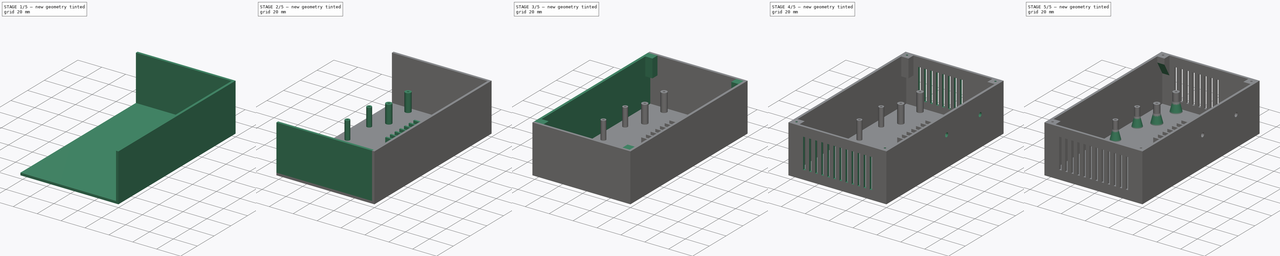
[diagram: build sequence overview — one tinted view per stage of 5, left to right]
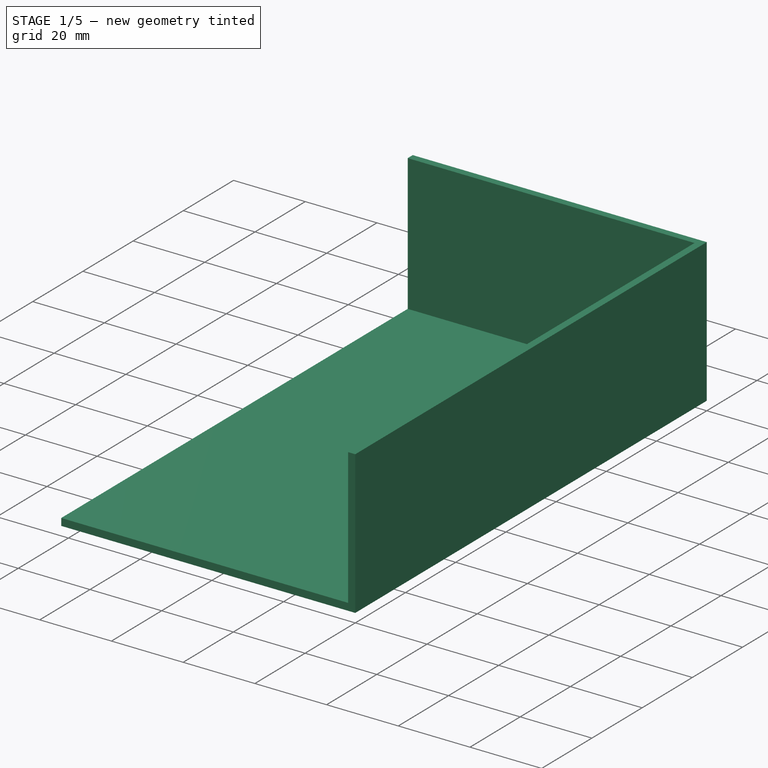
[diagram: stage 1 of 5 — iso view after this stage's code; geometry added in this stage tinted green]
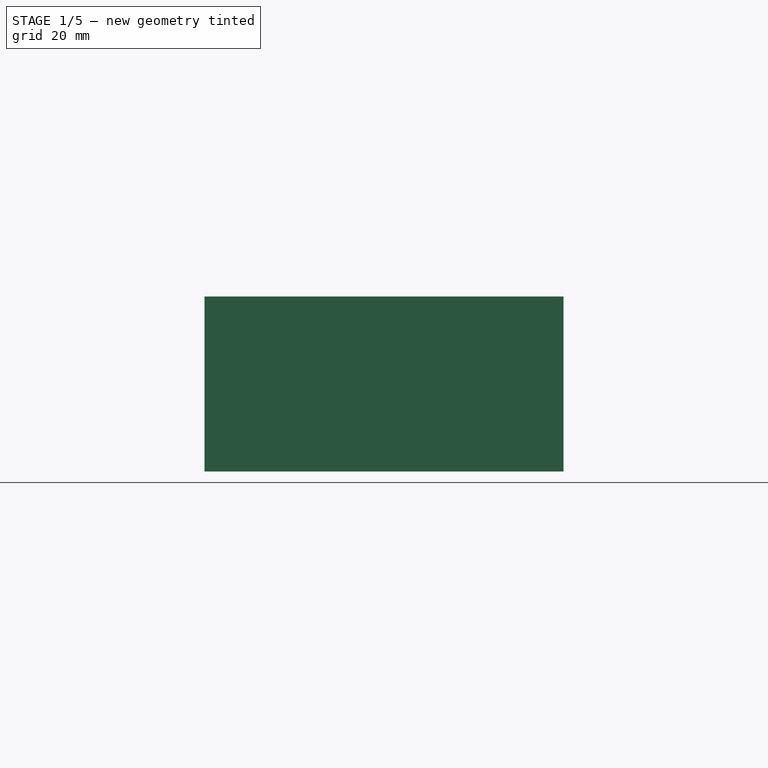
[diagram: stage 1 of 5 — front view after this stage's code; geometry added in this stage tinted green]
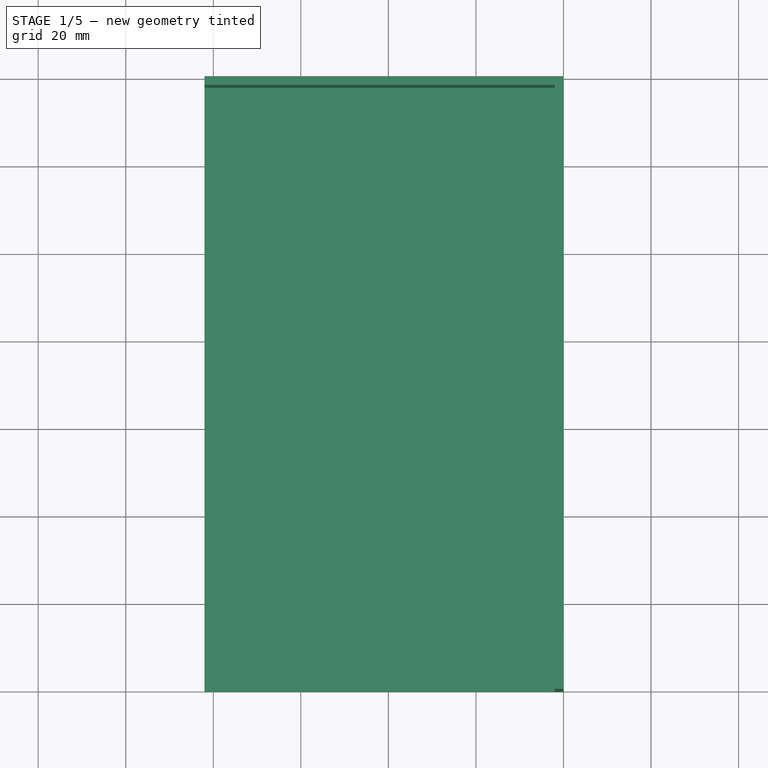
[diagram: stage 1 of 5 — top view after this stage's code; geometry added in this stage tinted green]
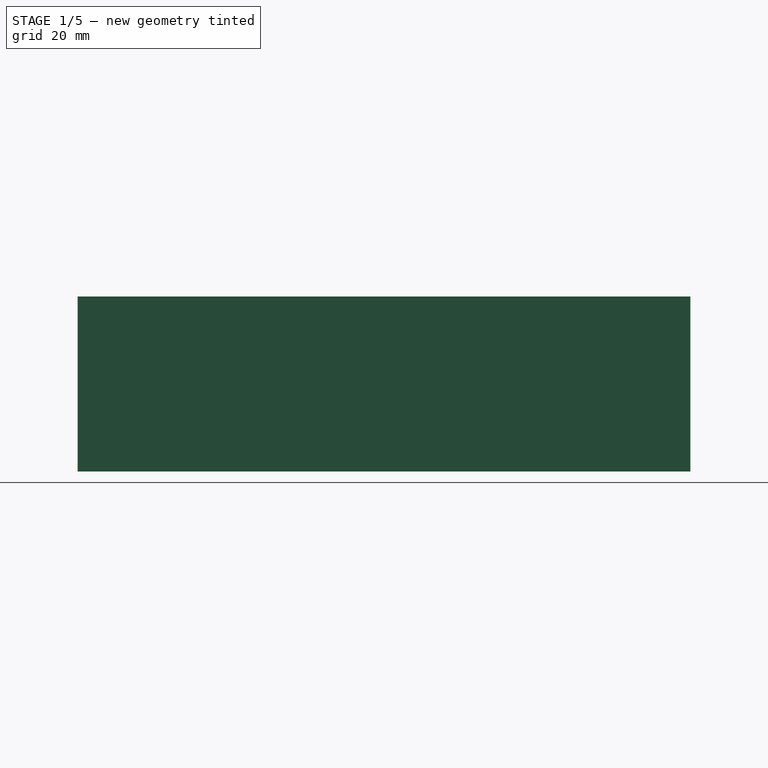
[diagram: stage 1 of 5 — right view after this stage's code; geometry added in this stage tinted green]
FCSTD DOCUMENT  (FreeCAD 0.19R24366 (Git))
Label: case
License: All rights reserved
LicenseURL: http://en.wikipedia.org/wiki/All_rights_reserved
objects: Sketcher::SketchObject×14, PartDesign::Pad×8, PartDesign::Pocket×6, PartDesign::Chamfer×3, PartDesign::Body×1
note: 49 computed .brp shape members not serialized (recipe doc carries the construction recipe); baked Part::Feature solids carry a one-line shape summary decoded from their .brp

FEATURE [Sketcher::SketchObject] Sketch
  FullyConstrained = true
  MapMode = 2
  Placement = pos=(0,0,0) rot=(0.57735,-0.57735,-0.57735;2.0944rad)
  sketch-geometry (4):
    g0: LineSegment StartX=0 StartY=0 StartZ=0 EndX=140 EndY=0 EndZ=0
    g1: LineSegment StartX=140 StartY=0 StartZ=0 EndX=140 EndY=40 EndZ=0
    g2: LineSegment StartX=140 StartY=40 StartZ=0 EndX=0 EndY=40 EndZ=0
    g3: LineSegment StartX=0 StartY=40 StartZ=0 EndX=0 EndY=0 EndZ=0
  constraints (11):
    c: Coincident(g0,g1)
    c: Coincident(g1,g2)
    c: Coincident(g2,g3)
    c: Coincident(g3,g0)
    c: Horizontal(g0)
    c: Horizontal(g2)
    c: Vertical(g1)
    c: Vertical(g3)
    c: Coincident(g0,g-1)
    c: DistanceY(g3,g3) = 40
    c: DistanceX(g2,g2) = 140
FEATURE [PartDesign::Pad] Pad  label="BottomPlate"
  Direction = (1,1,1)
  Length = 2
  Length2 = 100
  Placement = pos=(0,0,0) rot=(0.57735,-0.57735,-0.57735;2.0944rad)
  Profile = -> Sketch
  Type = 0
FEATURE [Sketcher::SketchObject] Sketch001
  ExternalGeometry = -> [Pad]
  FullyConstrained = true
  MapMode = 5
  Placement = pos=(-2,0,0) rot=(0.57735,-0.57735,-0.57735;2.0944rad)
  Support = -> [Pad]
  sketch-geometry (4):
    g0: LineSegment StartX=0 StartY=40 StartZ=0 EndX=2 EndY=40 EndZ=0
    g1: LineSegment StartX=2 StartY=40 StartZ=0 EndX=2 EndY=0 EndZ=0
    g2: LineSegment StartX=2 StartY=0 StartZ=0 EndX=0 EndY=0 EndZ=0
    g3: LineSegment StartX=0 StartY=0 StartZ=0 EndX=0 EndY=40 EndZ=0
  constraints (11):
    c: Coincident(g0,g1)
    c: Coincident(g1,g2)
    c: Coincident(g2,g3)
    c: Coincident(g3,g0)
    c: Horizontal(g0)
    c: Horizontal(g2)
    c: Vertical(g1)
    c: Vertical(g3)
    c: Coincident(g0,g-3)
    c: PointOnObject(g1,g-1)
    c: DistanceX(g0,g0) = 2
FEATURE [PartDesign::Pad] Pad001
  BaseFeature = -> Pad
  Direction = (1,1,1)
  Length = 80
  Length2 = 100
  Placement = pos=(0,0,0) rot=(0.57735,-0.57735,-0.57735;2.0944rad)
  Profile = -> Sketch001
  Type = 0
FEATURE [Sketcher::SketchObject] Sketch002
  ExternalGeometry = -> [Pad001]
  FullyConstrained = true
  MapMode = 5
  Placement = pos=(-2,0,0) rot=(0.57735,-0.57735,-0.57735;2.0944rad)
  Support = -> [Pad001]
  sketch-geometry (4):
    g0: LineSegment StartX=2 StartY=0 StartZ=0 EndX=140 EndY=0 EndZ=0
    g1: LineSegment StartX=140 StartY=0 StartZ=0 EndX=140 EndY=2 EndZ=0
    g2: LineSegment StartX=140 StartY=2 StartZ=0 EndX=2 EndY=2 EndZ=0
    g3: LineSegment StartX=2 StartY=2 StartZ=0 EndX=2 EndY=0 EndZ=0
  constraints (11):
    c: Coincident(g0,g1)
    c: Coincident(g1,g2)
    c: Coincident(g2,g3)
    c: Coincident(g3,g0)
    c: Horizontal(g0)
    c: Horizontal(g2)
    c: Vertical(g1)
    c: Vertical(g3)
    c: Coincident(g0,g-3)
    c: PointOnObject(g1,g-4)
    c: DistanceY(g1,g1) = 2
FEATURE [PartDesign::Pad] Pad002
  BaseFeature = -> Pad001
  Direction = (1,1,1)
  Length = 10
  Length2 = 100
  Placement = pos=(0,0,0) rot=(0.57735,-0.57735,-0.57735;2.0944rad)
  Profile = -> Sketch002
  Type = 3
  UpToFace = -> Pad001 [Face10]
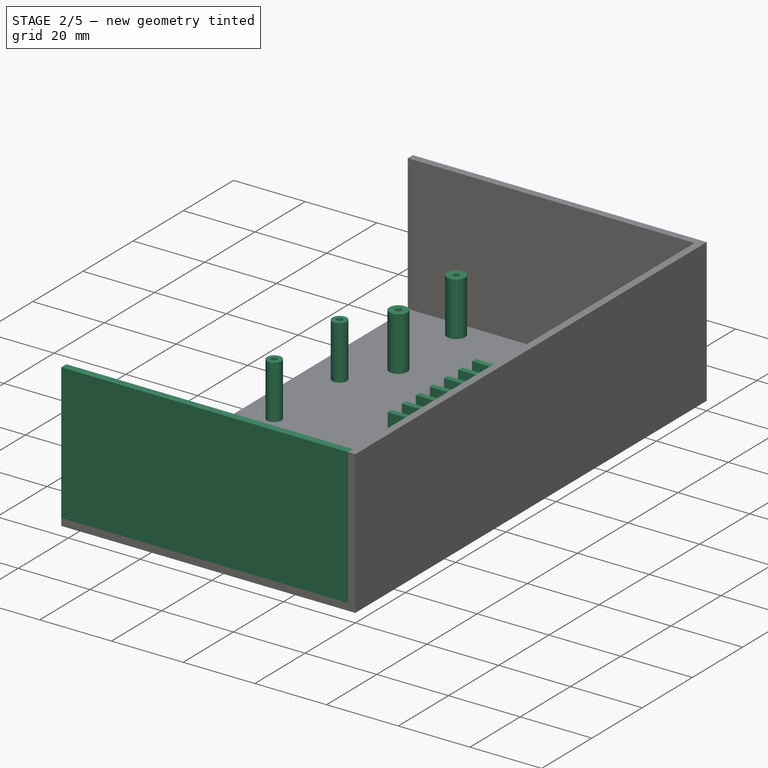
[diagram: stage 2 of 5 — iso view after this stage's code; geometry added in this stage tinted green]
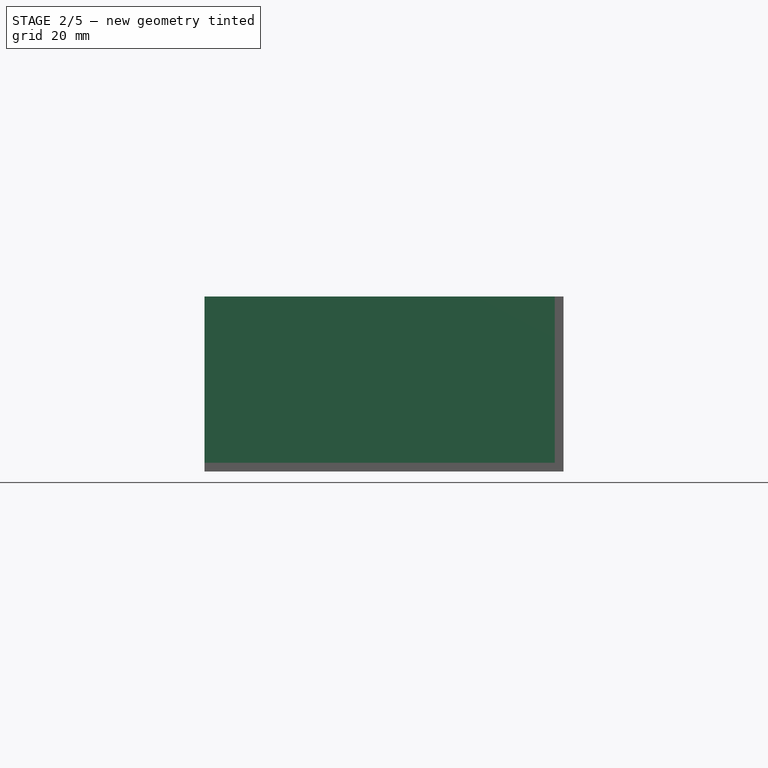
[diagram: stage 2 of 5 — front view after this stage's code; geometry added in this stage tinted green]
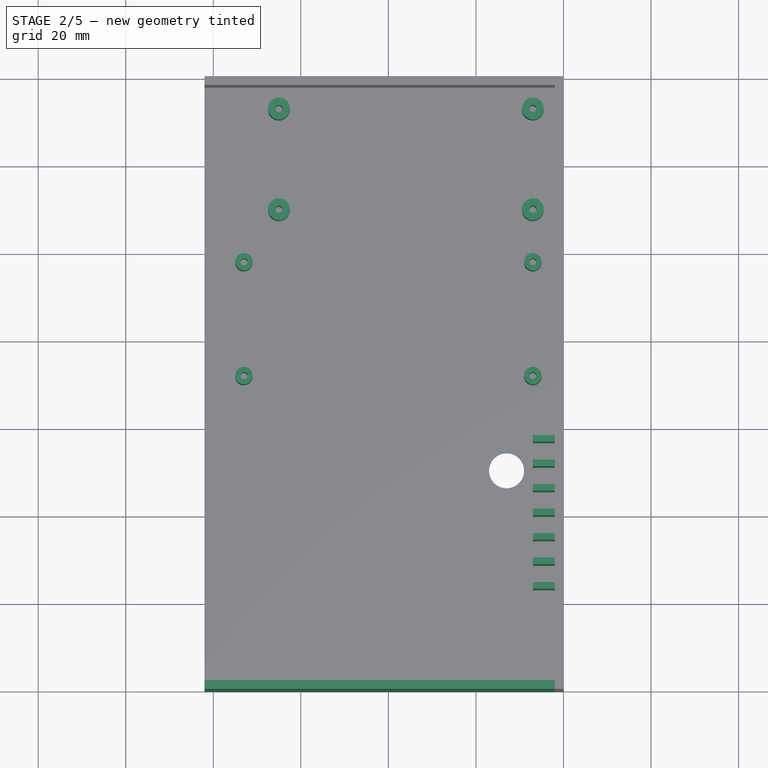
[diagram: stage 2 of 5 — top view after this stage's code; geometry added in this stage tinted green]
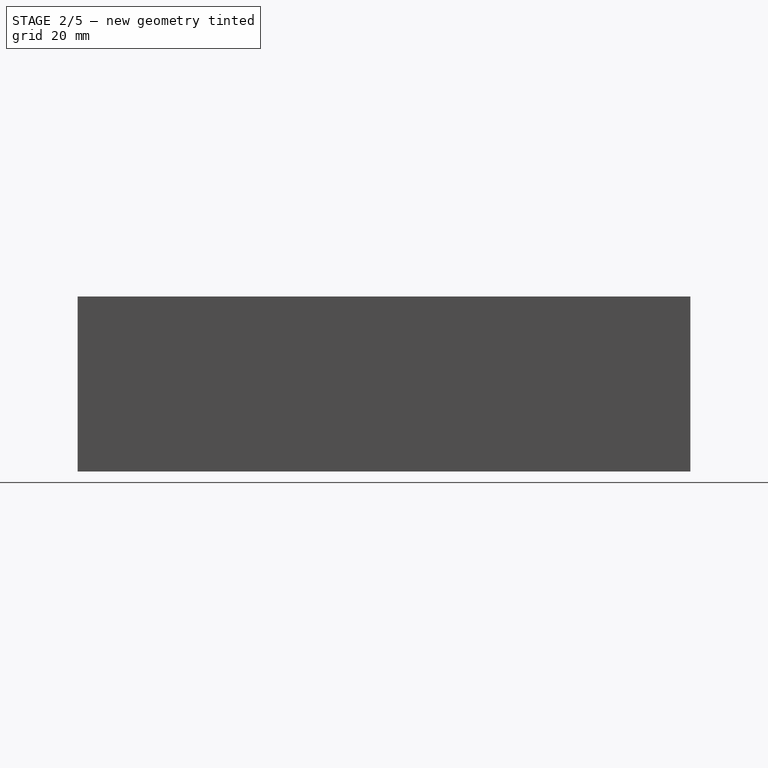
[diagram: stage 2 of 5 — right view after this stage's code; geometry added in this stage tinted green]
FEATURE [Sketcher::SketchObject] Sketch003
  ExternalGeometry = -> [Pad002]
  FullyConstrained = true
  MapMode = 5
  Placement = pos=(4e-16,-2e-16,2) rot=(0,0,1;1.5708rad)
  Support = -> [Pad002]
  sketch-geometry (16):
    g0: Circle CenterX=-7 CenterY=7 CenterZ=0 NormalX=0 NormalY=0 NormalZ=1 AngleXU=0 Radius=2.5
    g1: Circle CenterX=-30 CenterY=7 CenterZ=0 NormalX=0 NormalY=0 NormalZ=1 AngleXU=0 Radius=2.5
    g2: Circle CenterX=-7 CenterY=65 CenterZ=0 NormalX=0 NormalY=0 NormalZ=1 AngleXU=0 Radius=2.5
    g3: Circle CenterX=-30 CenterY=65 CenterZ=0 NormalX=0 NormalY=0 NormalZ=1 AngleXU=0 Radius=2.5
    g4: Circle CenterX=-30 CenterY=65 CenterZ=0 NormalX=0 NormalY=0 NormalZ=1 AngleXU=0 Radius=0.8
    g5: Circle CenterX=-7 CenterY=65 CenterZ=0 NormalX=0 NormalY=0 NormalZ=1 AngleXU=0 Radius=0.8
    g6: Circle CenterX=-30 CenterY=7 CenterZ=0 NormalX=0 NormalY=0 NormalZ=1 AngleXU=0 Radius=0.8
    g7: Circle CenterX=-7 CenterY=7 CenterZ=0 NormalX=0 NormalY=0 NormalZ=1 AngleXU=0 Radius=0.8
    g8: Circle CenterX=-42 CenterY=73 CenterZ=0 NormalX=0 NormalY=0 NormalZ=1 AngleXU=0 Radius=0.8
    g9: Circle CenterX=-42 CenterY=73 CenterZ=0 NormalX=0 NormalY=0 NormalZ=1 AngleXU=0 Radius=2
    g10: Circle CenterX=-68 CenterY=73 CenterZ=0 NormalX=0 NormalY=0 NormalZ=1 AngleXU=0 Radius=0.8
    g11: Circle CenterX=-68 CenterY=73 CenterZ=0 NormalX=0 NormalY=0 NormalZ=1 AngleXU=0 Radius=2
    g12: Circle CenterX=-42 CenterY=7 CenterZ=0 NormalX=0 NormalY=0 NormalZ=1 AngleXU=0 Radius=0.8
    g13: Circle CenterX=-42 CenterY=7 CenterZ=0 NormalX=0 NormalY=0 NormalZ=1 AngleXU=0 Radius=2
    g14: Circle CenterX=-68 CenterY=7 CenterZ=0 NormalX=0 NormalY=0 NormalZ=1 AngleXU=0 Radius=0.8
    g15: Circle CenterX=-68 CenterY=7 CenterZ=0 NormalX=0 NormalY=0 NormalZ=1 AngleXU=0 Radius=2
  constraints (40):
    c: DistanceX(g2,g0) = 0
    c: DistanceY(g0,g2) = 58
    c: DistanceX(g3,g2) = 23
    c: DistanceY(g2,g3) = 0
    c: DistanceY(g1,g0) = 0
    c: DistanceX(g1,g3) = 0
    c: DistanceX(g0,g-3) = 5
    c: DistanceY(g-3,g0) = 5
    c: Coincident(g4,g3)
    c: Coincident(g5,g2)
    c: Coincident(g6,g1)
    c: Coincident(g7,g0)
    c: Coincident(g9,g8)
    c: Coincident(g11,g10)
    c: Coincident(g13,g12)
    c: Coincident(g15,g14)
    c: DistanceY(g12,g14) = 0
    c: DistanceY(g10,g8) = 0
    c: DistanceX(g8,g12) = 0
    c: DistanceX(g14,g10) = 0
    c: DistanceY(g12,g8) = 66
    c: DistanceX(g10,g8) = 26
    c: Equal(g0,g1)
    c: Equal(g0,g3)
    c: Equal(g0,g2)
    c: Diameter(g0) = 5
    c: Equal(g4,g5)
    c: Equal(g4,g7)
    c: Equal(g4,g12)
    c: Equal(g4,g14)
    c: Equal(g4,g10)
    c: Equal(g4,g8)
    c: Equal(g4,g6)
    c: Diameter(g4) = 1.6
    c: Equal(g9,g11)
    c: Equal(g9,g15)
    c: Equal(g9,g13)
    c: Diameter(g9) = 4
    c: DistanceX(g12,g-3) = 40
    c: DistanceY(g12,g1) = 0
FEATURE [PartDesign::Pad] Pad003
  BaseFeature = -> Pad002
  Direction = (1,1,1)
  Length = 15
  Length2 = 100
  Placement = pos=(0,0,0) rot=(0.57735,-0.57735,-0.57735;2.0944rad)
  Profile = -> Sketch003
  Type = 0
FEATURE [Sketcher::SketchObject] Sketch004
  ExternalGeometry = -> [Pad003]
  FullyConstrained = true
  MapMode = 5
  Placement = pos=(-2,0,0) rot=(0.57735,-0.57735,-0.57735;2.0944rad)
  Support = -> [Pad003]
  sketch-geometry (34):
    g0: LineSegment StartX=82 StartY=17 StartZ=0 EndX=83.5 EndY=17 EndZ=0
    g1: LineSegment StartX=83.5 StartY=17 StartZ=0 EndX=83.5 EndY=40 EndZ=0
    g2: LineSegment StartX=83.5 StartY=40 StartZ=0 EndX=82 EndY=40 EndZ=0
    g3: LineSegment StartX=82 StartY=40 StartZ=0 EndX=82 EndY=17 EndZ=0
    g4: LineSegment StartX=87.6 StartY=17 StartZ=0 EndX=89.1 EndY=17 EndZ=0
    g5: LineSegment StartX=89.1 StartY=17 StartZ=0 EndX=89.1 EndY=40 EndZ=0
    g6: LineSegment StartX=89.1 StartY=40 StartZ=0 EndX=87.6 EndY=40 EndZ=0
    g7: LineSegment StartX=87.6 StartY=40 StartZ=0 EndX=87.6 EndY=17 EndZ=0
    g8: LineSegment StartX=82 StartY=17 StartZ=0 EndX=87.6 EndY=17 EndZ=0
    g9: LineSegment StartX=93.2 StartY=17 StartZ=0 EndX=94.7 EndY=17 EndZ=0
    g10: LineSegment StartX=94.7 StartY=17 StartZ=0 EndX=94.7 EndY=40 EndZ=0
    g11: LineSegment StartX=94.7 StartY=40 StartZ=0 EndX=93.2 EndY=40 EndZ=0
    g12: LineSegment StartX=93.2 StartY=40 StartZ=0 EndX=93.2 EndY=17 EndZ=0
    g13: LineSegment StartX=87.6 StartY=17 StartZ=0 EndX=93.2 EndY=17 EndZ=0
    g14: LineSegment StartX=98.8 StartY=17 StartZ=0 EndX=100.3 EndY=17 EndZ=0
    g15: LineSegment StartX=100.3 StartY=17 StartZ=0 EndX=100.3 EndY=40 EndZ=0
    g16: LineSegment StartX=100.3 StartY=40 StartZ=0 EndX=98.8 EndY=40 EndZ=0
    g17: LineSegment StartX=98.8 StartY=40 StartZ=0 EndX=98.8 EndY=17 EndZ=0
    g18: LineSegment StartX=93.2 StartY=17 StartZ=0 EndX=98.8 EndY=17 EndZ=0
    g19: LineSegment StartX=104.4 StartY=17 StartZ=0 EndX=105.9 EndY=17 EndZ=0
    g20: LineSegment StartX=105.9 StartY=17 StartZ=0 EndX=105.9 EndY=40 EndZ=0
    g21: LineSegment StartX=105.9 StartY=40 StartZ=0 EndX=104.4 EndY=40 EndZ=0
    g22: LineSegment StartX=104.4 StartY=40 StartZ=0 EndX=104.4 EndY=17 EndZ=0
    g23: LineSegment StartX=98.8 StartY=17 StartZ=0 EndX=104.4 EndY=17 EndZ=0
    g24: LineSegment StartX=110 StartY=17 StartZ=0 EndX=111.5 EndY=17 EndZ=0
    g25: LineSegment StartX=111.5 StartY=17 StartZ=0 EndX=111.5 EndY=40 EndZ=0
    g26: LineSegment StartX=111.5 StartY=40 StartZ=0 EndX=110 EndY=40 EndZ=0
    g27: LineSegment StartX=110 StartY=40 StartZ=0 EndX=110 EndY=17 EndZ=0
    g28: LineSegment StartX=104.4 StartY=17 StartZ=0 EndX=110 EndY=17 EndZ=0
    g29: LineSegment StartX=115.6 StartY=17 StartZ=0 EndX=117.1 EndY=17 EndZ=0
    g30: LineSegment StartX=117.1 StartY=17 StartZ=0 EndX=117.1 EndY=40 EndZ=0
    g31: LineSegment StartX=117.1 StartY=40 StartZ=0 EndX=115.6 EndY=40 EndZ=0
    g32: LineSegment StartX=115.6 StartY=40 StartZ=0 EndX=115.6 EndY=17 EndZ=0
    g33: LineSegment StartX=110 StartY=17 StartZ=0 EndX=115.6 EndY=17 EndZ=0
  constraints (96):
    c: Coincident(g0,g1)
    c: Coincident(g1,g2)
    c: Coincident(g2,g3)
    c: Coincident(g3,g0)
    c: Horizontal(g0)
    c: Horizontal(g2)
    c: Vertical(g1)
    c: Vertical(g3)
    c: DistanceX(g2,g2) = 1.5
    c: PointOnObject(g1,g-5)
    c: DistanceY(g-4,g0) = 15
    c: Coincident(g4,g5)
    c: Coincident(g5,g6)
    c: Coincident(g6,g7)
    c: Coincident(g7,g4)
    c: Horizontal(g4)
    c: Horizontal(g6)
    c: Vertical(g5)
    c: Vertical(g7)
    c: DistanceX(g6,g6) = 1.5
    c: Coincident(g0,g8)
    c: Coincident(g4,g8)
    c: Distance(g8) = 5.6
    c: Coincident(g9,g10)
    c: Coincident(g10,g11)
    c: Coincident(g11,g12)
    c: Coincident(g12,g9)
    c: Horizontal(g9)
    c: Horizontal(g11)
    c: Vertical(g10)
    c: Vertical(g12)
    c: DistanceX(g11,g11) = 1.5
    c: Coincident(g4,g13)
    c: Coincident(g9,g13)
    c: Equal(g8,g13)
    c: Parallel(g13,g8)
    c: Coincident(g14,g15)
    c: Coincident(g15,g16)
    c: Coincident(g16,g17)
    c: Coincident(g17,g14)
    c: Horizontal(g14)
    c: Horizontal(g16)
    c: Vertical(g15)
    c: Vertical(g17)
    c: DistanceX(g16,g16) = 1.5
    c: Coincident(g9,g18)
    c: Coincident(g14,g18)
    c: Equal(g8,g18)
    c: Parallel(g18,g8)
    c: Coincident(g19,g20)
    c: Coincident(g20,g21)
    c: Coincident(g21,g22)
    c: Coincident(g22,g19)
    c: Horizontal(g19)
    c: Horizontal(g21)
    c: Vertical(g20)
    c: Vertical(g22)
    c: DistanceX(g21,g21) = 1.5
    c: Coincident(g14,g23)
    c: Coincident(g19,g23)
    c: Equal(g8,g23)
    c: Parallel(g23,g8)
    c: Coincident(g24,g25)
    c: Coincident(g25,g26)
    c: Coincident(g26,g27)
    c: Coincident(g27,g24)
    c: Horizontal(g24)
    c: Horizontal(g26)
    c: Vertical(g25)
    c: Vertical(g27)
    c: DistanceX(g26,g26) = 1.5
    c: Coincident(g19,g28)
    c: Coincident(g24,g28)
    c: Equal(g8,g28)
    c: Parallel(g28,g8)
    c: Coincident(g29,g30)
    c: Coincident(g30,g31)
    c: Coincident(g31,g32)
    c: Coincident(g32,g29)
    c: Horizontal(g29)
    c: Horizontal(g31)
    c: Vertical(g30)
    c: Vertical(g32)
    c: DistanceX(g31,g31) = 1.5
    c: Coincident(g24,g33)
    c: Coincident(g29,g33)
    c: Equal(g8,g33)
    c: Parallel(g33,g8)
    c: PointOnObject(g7,g-5)
    c: DistanceY(g0,g4) = 0
    c: PointOnObject(g10,g-5)
    c: PointOnObject(g15,g-5)
    c: PointOnObject(g20,g-5)
    c: PointOnObject(g25,g-5)
    c: PointOnObject(g30,g-5)
    c: DistanceX(g-4,g0) = 80
FEATURE [PartDesign::Pad] Pad004
  BaseFeature = -> Pad003
  Direction = (1,1,1)
  Length = 5
  Length2 = 100
  Placement = pos=(0,0,0) rot=(0.57735,-0.57735,-0.57735;2.0944rad)
  Profile = -> Sketch004
  Type = 0
FEATURE [Sketcher::SketchObject] Sketch005
  ExternalGeometry = -> [Pad004]
  FullyConstrained = true
  MapMode = 5
  Placement = pos=(4e-16,-2e-16,2) rot=(0,0,1;1.5708rad)
  Support = -> [Pad004]
  sketch-geometry (1):
    g0: Circle CenterX=-89.5 CenterY=13 CenterZ=0 NormalX=0 NormalY=0 NormalZ=1 AngleXU=0 Radius=4
  constraints (3):
    c: DistanceX(g0,g-3) = 7.5
    c: DistanceY(g-3,g0) = 11
    c: Diameter(g0) = 8
FEATURE [PartDesign::Pocket] Pocket
  BaseFeature = -> Pad004
  Length = 0
  Length2 = 100
  Placement = pos=(0,0,0) rot=(0.57735,-0.57735,-0.57735;2.0944rad)
  Profile = -> Sketch005
  Type = 3
  UpToFace = -> Pad004 [Face6]
FEATURE [Sketcher::SketchObject] Sketch006
  ExternalGeometry = -> [Pocket]
  FullyConstrained = true
  MapMode = 5
  Placement = pos=(-2,0,0) rot=(0.57735,-0.57735,-0.57735;2.0944rad)
  Support = -> [Pocket]
  sketch-geometry (4):
    g0: LineSegment StartX=140 StartY=40 StartZ=0 EndX=138 EndY=40 EndZ=0
    g1: LineSegment StartX=138 StartY=40 StartZ=0 EndX=138 EndY=2 EndZ=0
    g2: LineSegment StartX=138 StartY=2 StartZ=0 EndX=140 EndY=2 EndZ=0
    g3: LineSegment StartX=140 StartY=2 StartZ=0 EndX=140 EndY=40 EndZ=0
  constraints (11):
    c: Coincident(g0,g1)
    c: Coincident(g1,g2)
    c: Coincident(g2,g3)
    c: Coincident(g3,g0)
    c: Horizontal(g0)
    c: Horizontal(g2)
    c: Vertical(g1)
    c: Vertical(g3)
    c: Coincident(g0,g-3)
    c: PointOnObject(g-3,g2)
    c: DistanceX(g0,g0) = 2
FEATURE [PartDesign::Pad] Pad005
  BaseFeature = -> Pocket
  Direction = (1,1,1)
  Length = 10
  Length2 = 100
  Placement = pos=(0,0,0) rot=(0.57735,-0.57735,-0.57735;2.0944rad)
  Profile = -> Sketch006
  Type = 3
  UpToFace = -> Pocket [Face12]
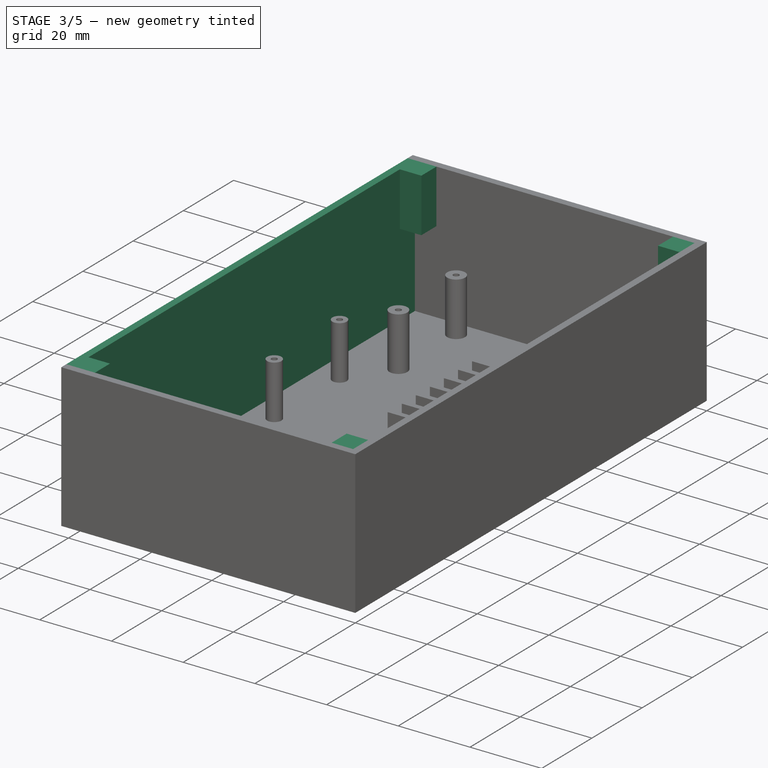
[diagram: stage 3 of 5 — iso view after this stage's code; geometry added in this stage tinted green]
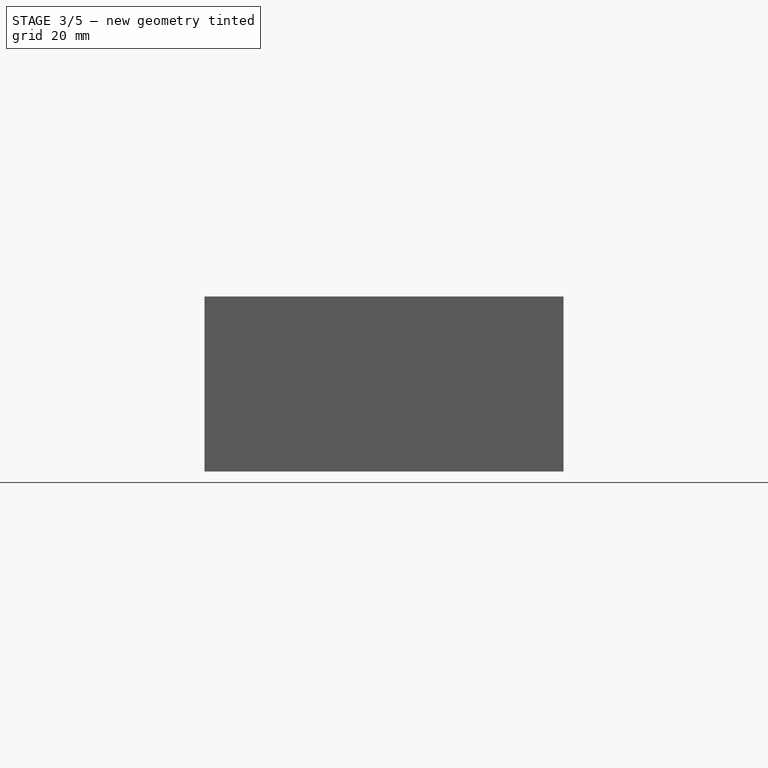
[diagram: stage 3 of 5 — front view after this stage's code; geometry added in this stage tinted green]
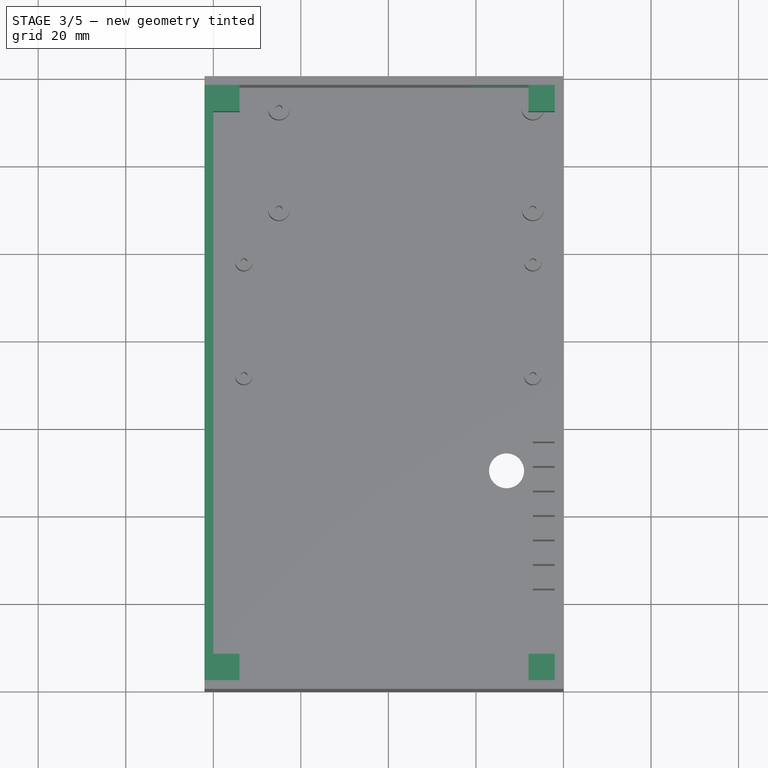
[diagram: stage 3 of 5 — top view after this stage's code; geometry added in this stage tinted green]
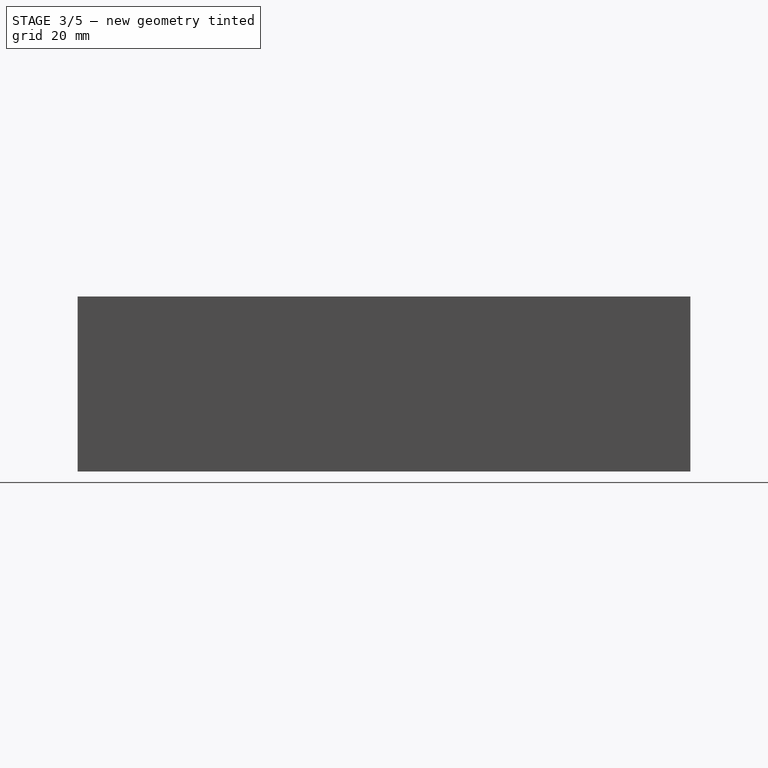
[diagram: stage 3 of 5 — right view after this stage's code; geometry added in this stage tinted green]
FEATURE [Sketcher::SketchObject] Sketch007
  ExternalGeometry = -> [Pad005]
  FullyConstrained = true
  MapMode = 5
  Placement = pos=(4e-16,-2e-16,2) rot=(0,0,1;1.5708rad)
  Support = -> [Pad005]
  sketch-geometry (4):
    g0: LineSegment StartX=-138 StartY=82 StartZ=0 EndX=-2 EndY=82 EndZ=0
    g1: LineSegment StartX=-2 StartY=82 StartZ=0 EndX=-2 EndY=80 EndZ=0
    g2: LineSegment StartX=-2 StartY=80 StartZ=0 EndX=-138 EndY=80 EndZ=0
    g3: LineSegment StartX=-138 StartY=80 StartZ=0 EndX=-138 EndY=82 EndZ=0
  constraints (11):
    c: Coincident(g0,g1)
    c: Coincident(g1,g2)
    c: Coincident(g2,g3)
    c: Coincident(g3,g0)
    c: Horizontal(g0)
    c: Horizontal(g2)
    c: Vertical(g1)
    c: Vertical(g3)
    c: Coincident(g0,g-3)
    c: PointOnObject(g-3,g1)
    c: DistanceY(g1,g1) = 2
FEATURE [PartDesign::Pad] Pad006
  BaseFeature = -> Pad005
  Direction = (1,1,1)
  Length = 10
  Length2 = 100
  Placement = pos=(0,0,0) rot=(0.57735,-0.57735,-0.57735;2.0944rad)
  Profile = -> Sketch007
  Type = 3
  UpToFace = -> Pad005 [Face14]
FEATURE [Sketcher::SketchObject] Sketch010
  ExternalGeometry = -> [Pad006]
  FullyConstrained = true
  MapMode = 5
  Placement = pos=(-2e-16,-2,0) rot=(0.57735,-0.57735,0.57735;2.0944rad)
  Support = -> [Pad006]
  sketch-geometry (8):
    g0: ArcOfCircle CenterX=17 CenterY=18.25 CenterZ=0 NormalX=0 NormalY=0 NormalZ=1 AngleXU=0 Radius=3.75 StartAngle=1.0341e-11 EndAngle=3.14159
    g1: ArcOfCircle CenterX=17 CenterY=10.75 CenterZ=0 NormalX=0 NormalY=0 NormalZ=1 AngleXU=0 Radius=3.75 StartAngle=3.14159 EndAngle=6.28319
    g2: LineSegment StartX=13.25 StartY=18.25 StartZ=0 EndX=13.25 EndY=10.75 EndZ=0
    g3: LineSegment StartX=20.75 StartY=18.25 StartZ=0 EndX=20.75 EndY=10.75 EndZ=0
    g4: GeomPoint X=17 Y=22 Z=0
    g5: GeomPoint X=17 Y=7 Z=0
    g6: GeomPoint X=17 Y=3.5 Z=0
    g7: GeomPoint X=17 Y=14.5 Z=0
  constraints (17):
    c: Tangent(g0,g3) = 1.5708
    c: Tangent(g0,g2) = -1.5708
    c: Tangent(g2,g1) = -1.5708
    c: Tangent(g3,g1) = 1.5708
    c: Vertical(g2)
    c: Equal(g0,g1)
    c: PointOnObject(g1,g-3)
    c: DistanceX(g0,g0) = 7.5
    c: PointOnObject(g4,g0)
    c: PointOnObject(g5,g1)
    c: PointOnObject(g5,g-3)
    c: PointOnObject(g4,g-3)
    c: DistanceY(g5,g4) = 15
    c: PointOnObject(g6,g-3)
    c: DistanceY(g6,g-3) = 1
    c: Symmetric(g0,g1,g7)
    c: DistanceY(g6,g7) = 11
FEATURE [PartDesign::Pocket] Pocket001
  BaseFeature = -> Pad006
  Length = 0
  Length2 = 100
  Placement = pos=(0,0,0) rot=(0.57735,-0.57735,-0.57735;2.0944rad)
  Profile = -> Sketch010
  Type = 3
  UpToFace = -> Pad006 [Face8]
FEATURE [Sketcher::SketchObject] Sketch011
  ExternalGeometry = -> [Pocket001]
  FullyConstrained = true
  MapMode = 5
  Placement = pos=(2.68e-14,-4.4e-15,40) rot=(0,0,1;1.5708rad)
  Support = -> [Pocket001]
  sketch-geometry (16):
    g0: LineSegment StartX=-140 StartY=0 StartZ=0 EndX=-132 EndY=0 EndZ=0
    g1: LineSegment StartX=-132 StartY=0 StartZ=0 EndX=-132 EndY=8 EndZ=0
    g2: LineSegment StartX=-132 StartY=8 StartZ=0 EndX=-140 EndY=8 EndZ=0
    g3: LineSegment StartX=-140 StartY=8 StartZ=0 EndX=-140 EndY=0 EndZ=0
    g4: LineSegment StartX=-140 StartY=82 StartZ=0 EndX=-132 EndY=82 EndZ=0
    g5: LineSegment StartX=-132 StartY=82 StartZ=0 EndX=-132 EndY=74 EndZ=0
    g6: LineSegment StartX=-132 StartY=74 StartZ=0 EndX=-140 EndY=74 EndZ=0
    g7: LineSegment StartX=-140 StartY=74 StartZ=0 EndX=-140 EndY=82 EndZ=0
    g8: LineSegment StartX=0 StartY=82 StartZ=0 EndX=-8 EndY=82 EndZ=0
    g9: LineSegment StartX=-8 StartY=82 StartZ=0 EndX=-8 EndY=74 EndZ=0
    g10: LineSegment StartX=-8 StartY=74 StartZ=0 EndX=0 EndY=74 EndZ=0
    g11: LineSegment StartX=0 StartY=74 StartZ=0 EndX=0 EndY=82 EndZ=0
    g12: LineSegment StartX=0 StartY=0 StartZ=0 EndX=-8 EndY=0 EndZ=0
    g13: LineSegment StartX=-8 StartY=0 StartZ=0 EndX=-8 EndY=8 EndZ=0
    g14: LineSegment StartX=-8 StartY=8 StartZ=0 EndX=0 EndY=8 EndZ=0
    g15: LineSegment StartX=0 StartY=8 StartZ=0 EndX=0 EndY=0 EndZ=0
  constraints (44):
    c: Coincident(g0,g1)
    c: Coincident(g1,g2)
    c: Coincident(g2,g3)
    c: Coincident(g3,g0)
    c: Horizontal(g0)
    c: Horizontal(g2)
    c: Vertical(g1)
    c: Vertical(g3)
    c: Coincident(g0,g-5)
    c: Coincident(g4,g5)
    c: Coincident(g5,g6)
    c: Coincident(g6,g7)
    c: Coincident(g7,g4)
    c: Horizontal(g4)
    c: Horizontal(g6)
    c: Vertical(g5)
    c: Vertical(g7)
    c: Coincident(g4,g-3)
    c: Coincident(g8,g9)
    c: Coincident(g9,g10)
    c: Coincident(g10,g11)
    c: Coincident(g11,g8)
    c: Horizontal(g8)
    c: Horizontal(g10)
    c: Vertical(g9)
    c: Vertical(g11)
    c: Coincident(g8,g-4)
    c: Coincident(g12,g13)
    c: Coincident(g13,g14)
    c: Coincident(g14,g15)
    c: Coincident(g15,g12)
    c: Horizontal(g12)
    c: Horizontal(g14)
    c: Vertical(g13)
    c: Vertical(g15)
    c: Coincident(g12,g-1)
    c: Equal(g6,g2)
    c: Equal(g2,g14)
    c: Equal(g14,g10)
    c: DistanceX(g6,g6) = 8
    c: Equal(g5,g9)
    c: Equal(g9,g13)
    c: Equal(g13,g1)
    c: DistanceY(g5,g5) = 8
FEATURE [PartDesign::Pad] Pad007
  BaseFeature = -> Pocket001
  Direction = (1,1,1)
  Length = 15
  Length2 = 100
  Placement = pos=(0,0,0) rot=(0.57735,-0.57735,-0.57735;2.0944rad)
  Profile = -> Sketch011
  Reversed = true
  Type = 0
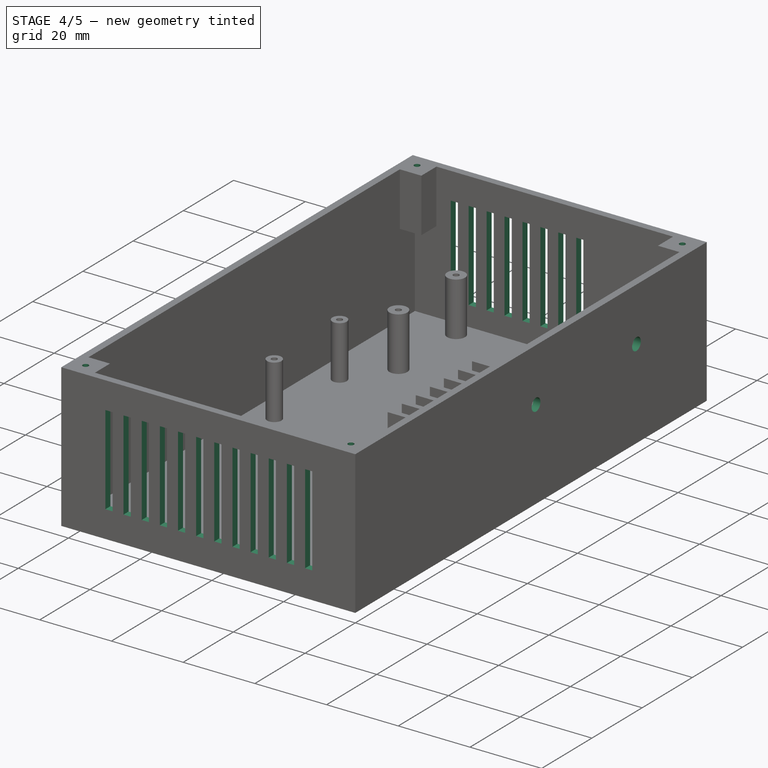
[diagram: stage 4 of 5 — iso view after this stage's code; geometry added in this stage tinted green]
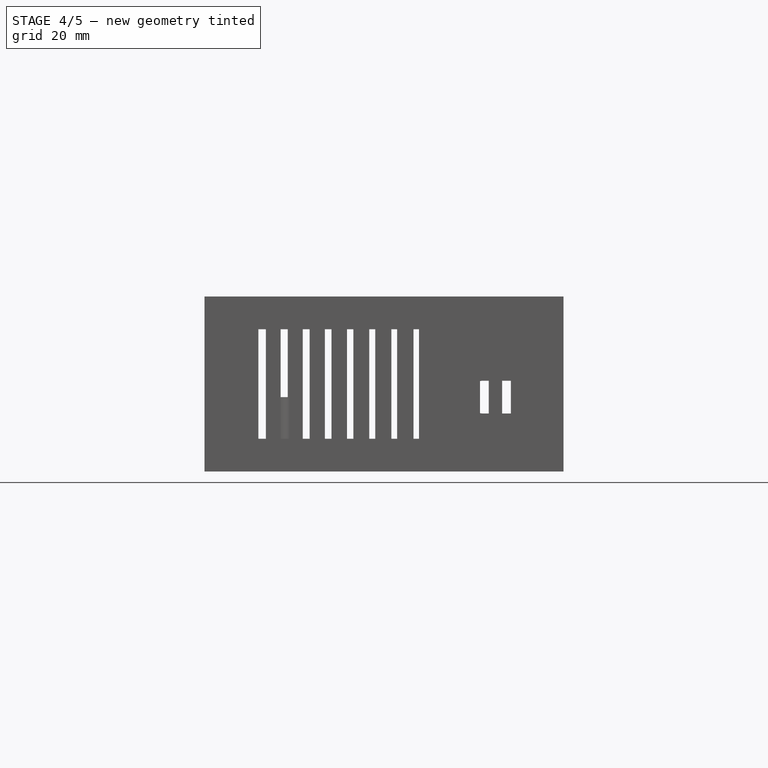
[diagram: stage 4 of 5 — front view after this stage's code; geometry added in this stage tinted green]
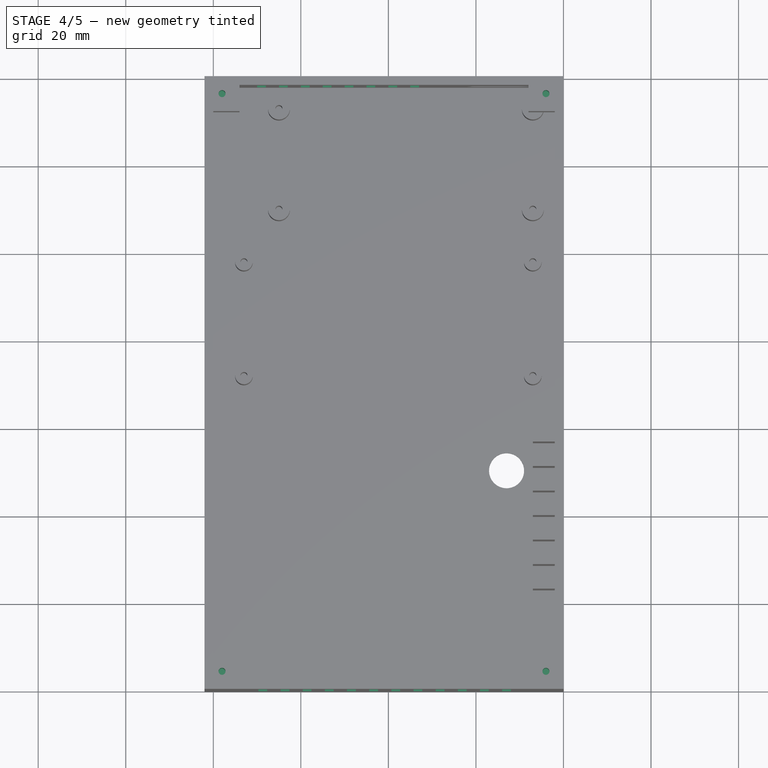
[diagram: stage 4 of 5 — top view after this stage's code; geometry added in this stage tinted green]
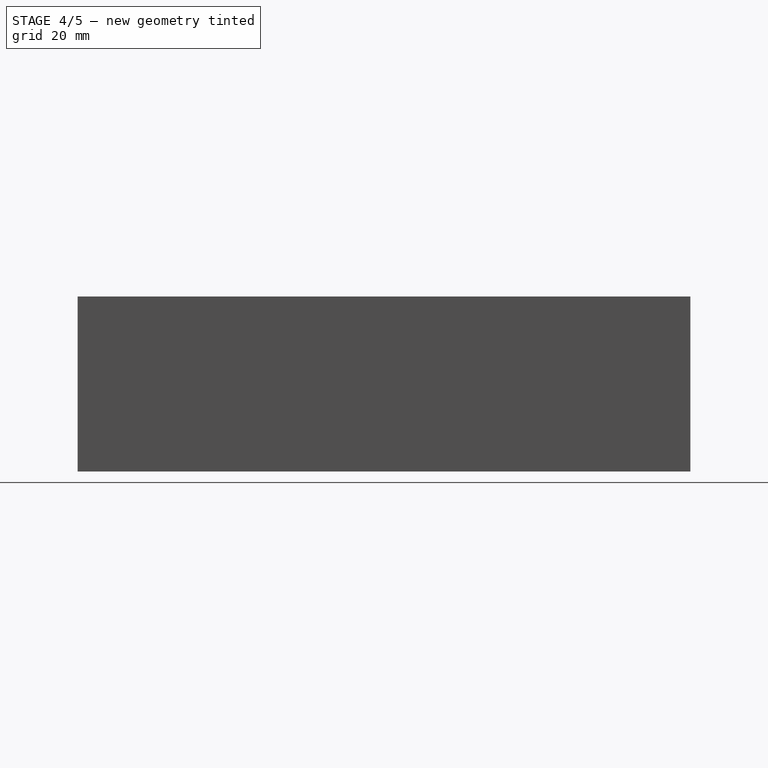
[diagram: stage 4 of 5 — right view after this stage's code; geometry added in this stage tinted green]
FEATURE [Sketcher::SketchObject] Sketch012
  ExternalGeometry = -> [Pad007]
  FullyConstrained = true
  MapMode = 5
  Placement = pos=(2.68e-14,0,40) rot=(0,0,1;1.5708rad)
  Support = -> [Pad007]
  sketch-geometry (4):
    g0: Circle CenterX=-136 CenterY=78 CenterZ=0 NormalX=0 NormalY=0 NormalZ=1 AngleXU=0 Radius=0.8
    g1: Circle CenterX=-4 CenterY=78 CenterZ=0 NormalX=0 NormalY=0 NormalZ=1 AngleXU=0 Radius=0.8
    g2: Circle CenterX=-4 CenterY=4 CenterZ=0 NormalX=0 NormalY=0 NormalZ=1 AngleXU=0 Radius=0.8
    g3: Circle CenterX=-136 CenterY=4 CenterZ=0 NormalX=0 NormalY=0 NormalZ=1 AngleXU=0 Radius=0.8
  constraints (12):
    c: Equal(g3,g0)
    c: Equal(g0,g1)
    c: Equal(g1,g2)
    c: Diameter(g0) = 1.6
    c: DistanceX(g-3,g0) = 4
    c: DistanceY(g0,g-3) = 4
    c: DistanceX(g1,g-5) = 4
    c: DistanceY(g1,g-5) = 4
    c: DistanceX(g2,g-1) = 4
    c: DistanceY(g-1,g2) = 4
    c: DistanceX(g-4,g3) = 4
    c: DistanceY(g-4,g3) = 4
FEATURE [PartDesign::Pocket] Pocket002
  BaseFeature = -> Pad007
  Length = 8
  Length2 = 100
  Placement = pos=(0,0,0) rot=(0.57735,-0.57735,-0.57735;2.0944rad)
  Profile = -> Sketch012
  Type = 0
FEATURE [Sketcher::SketchObject] Sketch013
  ExternalGeometry = -> [Pocket002]
  FullyConstrained = true
  MapMode = 5
  Placement = pos=(-2,0,4e-16) rot=(0.57735,-0.57735,-0.57735;2.0944rad)
  Support = -> [Pocket002]
  sketch-geometry (2):
    g0: Circle CenterX=68 CenterY=25 CenterZ=0 NormalX=0 NormalY=0 NormalZ=1 AngleXU=0 Radius=1.75
    g1: Circle CenterX=28 CenterY=25 CenterZ=0 NormalX=0 NormalY=0 NormalZ=1 AngleXU=0 Radius=1.75
  constraints (6):
    c: Equal(g1,g0)
    c: Diameter(g1) = 3.5
    c: DistanceY(g1,g0) = 0
    c: DistanceX(g-3,g1) = 20
    c: DistanceX(g1,g0) = 40
    c: DistanceY(g1,g-3) = 0
FEATURE [PartDesign::Pocket] Pocket003
  BaseFeature = -> Pocket002
  Length = 0
  Length2 = 100
  Placement = pos=(0,0,0) rot=(0.57735,-0.57735,-0.57735;2.0944rad)
  Profile = -> Sketch013
  Type = 3
  UpToFace = -> Pocket002 [Face4]
FEATURE [Sketcher::SketchObject] Sketch014
  FullyConstrained = true
  MapMode = 5
  Placement = pos=(3.12e-14,-140,0) rot=(0.57735,-0.57735,0.57735;2.0944rad)
  Support = -> [Pocket003]
  sketch-geometry (59):
    g0: LineSegment StartX=7.5 StartY=14 StartZ=0 EndX=32.5 EndY=14 EndZ=0
    g1: LineSegment StartX=32.5 StartY=14 StartZ=0 EndX=32.5 EndY=12 EndZ=0
    g2: LineSegment StartX=32.5 StartY=12 StartZ=0 EndX=7.5 EndY=12 EndZ=0
    g3: LineSegment StartX=7.5 StartY=12 StartZ=0 EndX=7.5 EndY=14 EndZ=0
    g4: LineSegment StartX=7.5 StartY=19.0627 StartZ=0 EndX=32.5 EndY=19.0627 EndZ=0
    g5: LineSegment StartX=32.5 StartY=19.0627 StartZ=0 EndX=32.5 EndY=17.0627 EndZ=0
    g6: LineSegment StartX=32.5 StartY=17.0627 StartZ=0 EndX=7.5 EndY=17.0627 EndZ=0
    g7: LineSegment StartX=7.5 StartY=17.0627 StartZ=0 EndX=7.5 EndY=19.0627 EndZ=0
    g8: LineSegment StartX=7.5 StartY=14 StartZ=0 EndX=7.5 EndY=19.0627 EndZ=0
    g9: LineSegment StartX=7.5 StartY=24.1253 StartZ=0 EndX=32.5 EndY=24.1253 EndZ=0
    g10: LineSegment StartX=32.5 StartY=24.1253 StartZ=0 EndX=32.5 EndY=22.1253 EndZ=0
    g11: LineSegment StartX=32.5 StartY=22.1253 StartZ=0 EndX=7.5 EndY=22.1253 EndZ=0
    g12: LineSegment StartX=7.5 StartY=22.1253 StartZ=0 EndX=7.5 EndY=24.1253 EndZ=0
    g13: LineSegment StartX=7.5 StartY=19.0627 StartZ=0 EndX=7.5 EndY=24.1253 EndZ=0
    g14: LineSegment StartX=7.5 StartY=29.188 StartZ=0 EndX=32.5 EndY=29.188 EndZ=0
    g15: LineSegment StartX=32.5 StartY=29.188 StartZ=0 EndX=32.5 EndY=27.188 EndZ=0
    g16: LineSegment StartX=32.5 StartY=27.188 StartZ=0 EndX=7.5 EndY=27.188 EndZ=0
    g17: LineSegment StartX=7.5 StartY=27.188 StartZ=0 EndX=7.5 EndY=29.188 EndZ=0
    g18: LineSegment StartX=7.5 StartY=24.1253 StartZ=0 EndX=7.5 EndY=29.188 EndZ=0
    g19: LineSegment StartX=7.5 StartY=34.2507 StartZ=0 EndX=32.5 EndY=34.2507 EndZ=0
    g20: LineSegment StartX=32.5 StartY=34.2507 StartZ=0 EndX=32.5 EndY=32.2507 EndZ=0
    g21: LineSegment StartX=32.5 StartY=32.2507 StartZ=0 EndX=7.5 EndY=32.2507 EndZ=0
    g22: LineSegment StartX=7.5 StartY=32.2507 StartZ=0 EndX=7.5 EndY=34.2507 EndZ=0
    g23: LineSegment StartX=7.5 StartY=29.188 StartZ=0 EndX=7.5 EndY=34.2507 EndZ=0
    g24: LineSegment StartX=7.5 StartY=39.3133 StartZ=0 EndX=32.5 EndY=39.3133 EndZ=0
    g25: LineSegment StartX=32.5 StartY=39.3133 StartZ=0 EndX=32.5 EndY=37.3133 EndZ=0
    g26: LineSegment StartX=32.5 StartY=37.3133 StartZ=0 EndX=7.5 EndY=37.3133 EndZ=0
    g27: LineSegment StartX=7.5 StartY=37.3133 StartZ=0 EndX=7.5 EndY=39.3133 EndZ=0
    g28: LineSegment StartX=7.5 StartY=34.2507 StartZ=0 EndX=7.5 EndY=39.3133 EndZ=0
    g29: LineSegment StartX=7.5 StartY=44.376 StartZ=0 EndX=32.5 EndY=44.376 EndZ=0
    g30: LineSegment StartX=32.5 StartY=44.376 StartZ=0 EndX=32.5 EndY=42.376 EndZ=0
    g31: LineSegment StartX=32.5 StartY=42.376 StartZ=0 EndX=7.5 EndY=42.376 EndZ=0
    g32: LineSegment StartX=7.5 StartY=42.376 StartZ=0 EndX=7.5 EndY=44.376 EndZ=0
    g33: LineSegment StartX=7.5 StartY=39.3133 StartZ=0 EndX=7.5 EndY=44.376 EndZ=0
    g34: LineSegment StartX=7.5 StartY=49.4387 StartZ=0 EndX=32.5 EndY=49.4387 EndZ=0
    g35: LineSegment StartX=32.5 StartY=49.4387 StartZ=0 EndX=32.5 EndY=47.4387 EndZ=0
    g36: LineSegment StartX=32.5 StartY=47.4387 StartZ=0 EndX=7.5 EndY=47.4387 EndZ=0
    g37: LineSegment StartX=7.5 StartY=47.4387 StartZ=0 EndX=7.5 EndY=49.4387 EndZ=0
    g38: LineSegment StartX=7.5 StartY=44.376 StartZ=0 EndX=7.5 EndY=49.4387 EndZ=0
    g39: LineSegment StartX=7.5 StartY=54.5014 StartZ=0 EndX=32.5 EndY=54.5014 EndZ=0
    g40: LineSegment StartX=32.5 StartY=54.5014 StartZ=0 EndX=32.5 EndY=52.5014 EndZ=0
    g41: LineSegment StartX=32.5 StartY=52.5014 StartZ=0 EndX=7.5 EndY=52.5014 EndZ=0
    g42: LineSegment StartX=7.5 StartY=52.5014 StartZ=0 EndX=7.5 EndY=54.5014 EndZ=0
    g43: LineSegment StartX=7.5 StartY=49.4387 StartZ=0 EndX=7.5 EndY=54.5014 EndZ=0
    g44: LineSegment StartX=7.5 StartY=59.564 StartZ=0 EndX=32.5 EndY=59.564 EndZ=0
    g45: LineSegment StartX=32.5 StartY=59.564 StartZ=0 EndX=32.5 EndY=57.564 EndZ=0
    g46: LineSegment StartX=32.5 StartY=57.564 StartZ=0 EndX=7.5 EndY=57.564 EndZ=0
    g47: LineSegment StartX=7.5 StartY=57.564 StartZ=0 EndX=7.5 EndY=59.564 EndZ=0
    g48: LineSegment StartX=7.5 StartY=54.5014 StartZ=0 EndX=7.5 EndY=59.564 EndZ=0
    g49: LineSegment StartX=7.5 StartY=64.6267 StartZ=0 EndX=32.5 EndY=64.6267 EndZ=0
    g50: LineSegment StartX=32.5 StartY=64.6267 StartZ=0 EndX=32.5 EndY=62.6267 EndZ=0
    g51: LineSegment StartX=32.5 StartY=62.6267 StartZ=0 EndX=7.5 EndY=62.6267 EndZ=0
    g52: LineSegment StartX=7.5 StartY=62.6267 StartZ=0 EndX=7.5 EndY=64.6267 EndZ=0
    g53: LineSegment StartX=7.5 StartY=59.564 StartZ=0 EndX=7.5 EndY=64.6267 EndZ=0
    g54: LineSegment StartX=7.5 StartY=69.6894 StartZ=0 EndX=32.5 EndY=69.6894 EndZ=0
    g55: LineSegment StartX=32.5 StartY=69.6894 StartZ=0 EndX=32.5 EndY=67.6894 EndZ=0
    g56: LineSegment StartX=32.5 StartY=67.6894 StartZ=0 EndX=7.5 EndY=67.6894 EndZ=0
    g57: LineSegment StartX=7.5 StartY=67.6894 StartZ=0 EndX=7.5 EndY=69.6894 EndZ=0
    g58: LineSegment StartX=7.5 StartY=64.6267 StartZ=0 EndX=7.5 EndY=69.6894 EndZ=0
  constraints (166):
    c: Coincident(g0,g1)
    c: Coincident(g1,g2)
    c: Coincident(g2,g3)
    c: Coincident(g3,g0)
    c: Horizontal(g0)
    c: Horizontal(g2)
    c: Vertical(g1)
    c: Vertical(g3)
    c: DistanceY(g1,g1) = 2
    c: DistanceX(g0,g0) = 25
    c: Coincident(g4,g5)
    c: Coincident(g5,g6)
    c: Coincident(g6,g7)
    c: Coincident(g7,g4)
    c: Horizontal(g4)
    c: Horizontal(g6)
    c: Vertical(g5)
    c: Vertical(g7)
    c: DistanceY(g5,g5) = 2
    c: DistanceX(g4,g4) = 25
    c: Coincident(g0,g8)
    c: Coincident(g4,g8)
    c: Distance(g8) = 5.06267
    c: Angle(g8) = 1.5708
    c: Coincident(g9,g10)
    c: Coincident(g10,g11)
    c: Coincident(g11,g12)
    c: Coincident(g12,g9)
    c: Horizontal(g9)
    c: Horizontal(g11)
    c: Vertical(g10)
    c: Vertical(g12)
    c: DistanceY(g10,g10) = 2
    c: DistanceX(g9,g9) = 25
    c: Coincident(g4,g13)
    c: Coincident(g9,g13)
    c: Equal(g8,g13)
    c: Parallel(g13,g8)
    c: Coincident(g14,g15)
    c: Coincident(g15,g16)
    c: Coincident(g16,g17)
    c: Coincident(g17,g14)
    c: Horizontal(g14)
    c: Horizontal(g16)
    c: Vertical(g15)
    c: Vertical(g17)
    c: DistanceY(g15,g15) = 2
    c: DistanceX(g14,g14) = 25
    c: Coincident(g9,g18)
    c: Coincident(g14,g18)
    c: Equal(g8,g18)
    c: Parallel(g18,g8)
    c: Coincident(g19,g20)
    c: Coincident(g20,g21)
    c: Coincident(g21,g22)
    c: Coincident(g22,g19)
    c: Horizontal(g19)
    c: Horizontal(g21)
    c: Vertical(g20)
    c: Vertical(g22)
    c: DistanceY(g20,g20) = 2
    c: DistanceX(g19,g19) = 25
    c: Coincident(g14,g23)
    c: Coincident(g19,g23)
    c: Equal(g8,g23)
    c: Parallel(g23,g8)
    c: Coincident(g24,g25)
    c: Coincident(g25,g26)
    c: Coincident(g26,g27)
    c: Coincident(g27,g24)
    c: Horizontal(g24)
    c: Horizontal(g26)
    c: Vertical(g25)
    c: Vertical(g27)
    c: DistanceY(g25,g25) = 2
    c: DistanceX(g24,g24) = 25
    c: Coincident(g19,g28)
    c: Coincident(g24,g28)
    c: Equal(g8,g28)
    c: Parallel(g28,g8)
    c: Coincident(g29,g30)
    c: Coincident(g30,g31)
    c: Coincident(g31,g32)
    c: Coincident(g32,g29)
    c: Horizontal(g29)
    c: Horizontal(g31)
    c: Vertical(g30)
    c: Vertical(g32)
    c: DistanceY(g30,g30) = 2
    c: DistanceX(g29,g29) = 25
    c: Coincident(g24,g33)
    c: Coincident(g29,g33)
    c: Equal(g8,g33)
    c: Parallel(g33,g8)
    c: Coincident(g34,g35)
    c: Coincident(g35,g36)
    c: Coincident(g36,g37)
    c: Coincident(g37,g34)
    c: Horizontal(g34)
    c: Horizontal(g36)
    c: Vertical(g35)
    c: Vertical(g37)
    c: DistanceY(g35,g35) = 2
    c: DistanceX(g34,g34) = 25
    c: Coincident(g29,g38)
    c: Coincident(g34,g38)
    c: Equal(g8,g38)
    c: Parallel(g38,g8)
    c: Coincident(g39,g40)
    c: Coincident(g40,g41)
    c: Coincident(g41,g42)
    c: Coincident(g42,g39)
    c: Horizontal(g39)
    c: Horizontal(g41)
    c: Vertical(g40)
    c: Vertical(g42)
    c: DistanceY(g40,g40) = 2
    c: DistanceX(g39,g39) = 25
    c: Coincident(g34,g43)
    c: Coincident(g39,g43)
    c: Equal(g8,g43)
    c: Parallel(g43,g8)
    c: Coincident(g44,g45)
    c: Coincident(g45,g46)
    c: Coincident(g46,g47)
    c: Coincident(g47,g44)
    c: Horizontal(g44)
    c: Horizontal(g46)
    c: Vertical(g45)
    c: Vertical(g47)
    c: DistanceY(g45,g45) = 2
    c: DistanceX(g44,g44) = 25
    c: Coincident(g39,g48)
    c: Coincident(g44,g48)
    c: Equal(g8,g48)
    c: Parallel(g48,g8)
    c: Coincident(g49,g50)
    c: Coincident(g50,g51)
    c: Coincident(g51,g52)
    c: Coincident(g52,g49)
    c: Horizontal(g49)
    c: Horizontal(g51)
    c: Vertical(g50)
    c: Vertical(g52)
    c: DistanceY(g50,g50) = 2
    c: DistanceX(g49,g49) = 25
    c: Coincident(g44,g53)
    c: Coincident(g49,g53)
    c: Equal(g8,g53)
    c: Parallel(g53,g8)
    c: Coincident(g54,g55)
    c: Coincident(g55,g56)
    c: Coincident(g56,g57)
    c: Coincident(g57,g54)
    c: Horizontal(g54)
    c: Horizontal(g56)
    c: Vertical(g55)
    c: Vertical(g57)
    c: DistanceY(g55,g55) = 2
    c: DistanceX(g54,g54) = 25
    c: Coincident(g49,g58)
    c: Coincident(g54,g58)
    c: Equal(g8,g58)
    c: Parallel(g58,g8)
    c: DistanceX(g-1,g2) = 7.5
    c: DistanceY(g-1,g2) = 12
FEATURE [PartDesign::Pocket] Pocket004
  BaseFeature = -> Pocket003
  Length = 0
  Length2 = 100
  Placement = pos=(0,0,0) rot=(0.57735,-0.57735,-0.57735;2.0944rad)
  Profile = -> Sketch014
  Type = 3
  UpToFace = -> Pocket003 [Face50]
FEATURE [Sketcher::SketchObject] Sketch015
  ExternalGeometry = -> [Pocket004]
  FullyConstrained = true
  MapMode = 5
  Placement = pos=(0,7e-16,0) rot=(-0.57735,0.57735,0.57735;2.0944rad)
  Support = -> [Pocket004]
  sketch-geometry (39):
    g0: LineSegment StartX=-7.5 StartY=70 StartZ=0 EndX=-32.5 EndY=70 EndZ=0
    g1: LineSegment StartX=-32.5 StartY=70 StartZ=0 EndX=-32.5 EndY=68 EndZ=0
    g2: LineSegment StartX=-32.5 StartY=68 StartZ=0 EndX=-7.5 EndY=68 EndZ=0
    g3: LineSegment StartX=-7.5 StartY=68 StartZ=0 EndX=-7.5 EndY=70 EndZ=0
    g4: LineSegment StartX=-7.5 StartY=65 StartZ=0 EndX=-32.5 EndY=65 EndZ=0
    g5: LineSegment StartX=-32.5 StartY=65 StartZ=0 EndX=-32.5 EndY=63 EndZ=0
    g6: LineSegment StartX=-32.5 StartY=63 StartZ=0 EndX=-7.5 EndY=63 EndZ=0
    g7: LineSegment StartX=-7.5 StartY=63 StartZ=0 EndX=-7.5 EndY=65 EndZ=0
    g8: LineSegment StartX=-7.5 StartY=70 StartZ=0 EndX=-7.5 EndY=65 EndZ=0
    g9: LineSegment StartX=-7.5 StartY=60 StartZ=0 EndX=-32.5 EndY=60 EndZ=0
    g10: LineSegment StartX=-32.5 StartY=60 StartZ=0 EndX=-32.5 EndY=58 EndZ=0
    g11: LineSegment StartX=-32.5 StartY=58 StartZ=0 EndX=-7.5 EndY=58 EndZ=0
    g12: LineSegment StartX=-7.5 StartY=58 StartZ=0 EndX=-7.5 EndY=60 EndZ=0
    g13: LineSegment StartX=-7.5 StartY=65 StartZ=0 EndX=-7.5 EndY=60 EndZ=0
    g14: LineSegment StartX=-7.5 StartY=55 StartZ=0 EndX=-32.5 EndY=55 EndZ=0
    g15: LineSegment StartX=-32.5 StartY=55 StartZ=0 EndX=-32.5 EndY=53 EndZ=0
    g16: LineSegment StartX=-32.5 StartY=53 StartZ=0 EndX=-7.5 EndY=53 EndZ=0
    g17: LineSegment StartX=-7.5 StartY=53 StartZ=0 EndX=-7.5 EndY=55 EndZ=0
    g18: LineSegment StartX=-7.5 StartY=60 StartZ=0 EndX=-7.5 EndY=55 EndZ=0
    g19: LineSegment StartX=-7.5 StartY=50 StartZ=0 EndX=-32.5 EndY=50 EndZ=0
    g20: LineSegment StartX=-32.5 StartY=50 StartZ=0 EndX=-32.5 EndY=48 EndZ=0
    g21: LineSegment StartX=-32.5 StartY=48 StartZ=0 EndX=-7.5 EndY=48 EndZ=0
    g22: LineSegment StartX=-7.5 StartY=48 StartZ=0 EndX=-7.5 EndY=50 EndZ=0
    g23: LineSegment StartX=-7.5 StartY=55 StartZ=0 EndX=-7.5 EndY=50 EndZ=0
    g24: LineSegment StartX=-7.5 StartY=45 StartZ=0 EndX=-32.5 EndY=45 EndZ=0
    g25: LineSegment StartX=-32.5 StartY=45 StartZ=0 EndX=-32.5 EndY=43 EndZ=0
    g26: LineSegment StartX=-32.5 StartY=43 StartZ=0 EndX=-7.5 EndY=43 EndZ=0
    g27: LineSegment StartX=-7.5 StartY=43 StartZ=0 EndX=-7.5 EndY=45 EndZ=0
    g28: LineSegment StartX=-7.5 StartY=50 StartZ=0 EndX=-7.5 EndY=45 EndZ=0
    g29: LineSegment StartX=-7.5 StartY=40 StartZ=0 EndX=-32.5 EndY=40 EndZ=0
    g30: LineSegment StartX=-32.5 StartY=40 StartZ=0 EndX=-32.5 EndY=38 EndZ=0
    g31: LineSegment StartX=-32.5 StartY=38 StartZ=0 EndX=-7.5 EndY=38 EndZ=0
    g32: LineSegment StartX=-7.5 StartY=38 StartZ=0 EndX=-7.5 EndY=40 EndZ=0
    g33: LineSegment StartX=-7.5 StartY=45 StartZ=0 EndX=-7.5 EndY=40 EndZ=0
    g34: LineSegment StartX=-7.5 StartY=35 StartZ=0 EndX=-32.5 EndY=35 EndZ=0
    g35: LineSegment StartX=-32.5 StartY=35 StartZ=0 EndX=-32.5 EndY=33 EndZ=0
    g36: LineSegment StartX=-32.5 StartY=33 StartZ=0 EndX=-7.5 EndY=33 EndZ=0
    g37: LineSegment StartX=-7.5 StartY=33 StartZ=0 EndX=-7.5 EndY=35 EndZ=0
    g38: LineSegment StartX=-7.5 StartY=40 StartZ=0 EndX=-7.5 EndY=35 EndZ=0
  constraints (110):
    c: Coincident(g0,g1)
    c: Coincident(g1,g2)
    c: Coincident(g2,g3)
    c: Coincident(g3,g0)
    c: Horizontal(g0)
    c: Horizontal(g2)
    c: Vertical(g1)
    c: Vertical(g3)
    c: DistanceX(g0,g0) = 25
    c: DistanceY(g1,g1) = 2
    c: Coincident(g4,g5)
    c: Coincident(g5,g6)
    c: Coincident(g6,g7)
    c: Coincident(g7,g4)
    c: Horizontal(g4)
    c: Horizontal(g6)
    c: Vertical(g5)
    c: Vertical(g7)
    c: DistanceX(g4,g4) = 25
    c: DistanceY(g5,g5) = 2
    c: Coincident(g0,g8)
    c: Coincident(g4,g8)
    c: Distance(g8) = 5
    c: Angle(g8) = -1.5708
    c: Coincident(g9,g10)
    c: Coincident(g10,g11)
    c: Coincident(g11,g12)
    c: Coincident(g12,g9)
    c: Horizontal(g9)
    c: Horizontal(g11)
    c: Vertical(g10)
    c: Vertical(g12)
    c: DistanceX(g9,g9) = 25
    c: DistanceY(g10,g10) = 2
    c: Coincident(g4,g13)
    c: Coincident(g9,g13)
    c: Equal(g8,g13)
    c: Parallel(g13,g8)
    c: Coincident(g14,g15)
    c: Coincident(g15,g16)
    c: Coincident(g16,g17)
    c: Coincident(g17,g14)
    c: Horizontal(g14)
    c: Horizontal(g16)
    c: Vertical(g15)
    c: Vertical(g17)
    c: DistanceX(g14,g14) = 25
    c: DistanceY(g15,g15) = 2
    c: Coincident(g9,g18)
    c: Coincident(g14,g18)
    c: Equal(g8,g18)
    c: Parallel(g18,g8)
    c: Coincident(g19,g20)
    c: Coincident(g20,g21)
    c: Coincident(g21,g22)
    c: Coincident(g22,g19)
    c: Horizontal(g19)
    c: Horizontal(g21)
    c: Vertical(g20)
    c: Vertical(g22)
    c: DistanceX(g19,g19) = 25
    c: DistanceY(g20,g20) = 2
    c: Coincident(g14,g23)
    c: Coincident(g19,g23)
    c: Equal(g8,g23)
    c: Parallel(g23,g8)
    c: Coincident(g24,g25)
    c: Coincident(g25,g26)
    c: Coincident(g26,g27)
    c: Coincident(g27,g24)
    c: Horizontal(g24)
    c: Horizontal(g26)
    c: Vertical(g25)
    c: Vertical(g27)
    c: DistanceX(g24,g24) = 25
    c: DistanceY(g25,g25) = 2
    c: Coincident(g19,g28)
    c: Coincident(g24,g28)
    c: Equal(g8,g28)
    c: Parallel(g28,g8)
    c: Coincident(g29,g30)
    c: Coincident(g30,g31)
    c: Coincident(g31,g32)
    c: Coincident(g32,g29)
    c: Horizontal(g29)
    c: Horizontal(g31)
    c: Vertical(g30)
    c: Vertical(g32)
    c: DistanceX(g29,g29) = 25
    c: DistanceY(g30,g30) = 2
    c: Coincident(g24,g33)
    c: Coincident(g29,g33)
    c: Equal(g8,g33)
    c: Parallel(g33,g8)
    c: Coincident(g34,g35)
    c: Coincident(g35,g36)
    c: Coincident(g36,g37)
    c: Coincident(g37,g34)
    c: Horizontal(g34)
    c: Horizontal(g36)
    c: Vertical(g35)
    c: Vertical(g37)
    c: DistanceX(g34,g34) = 25
    c: DistanceY(g35,g35) = 2
    c: Coincident(g29,g38)
    c: Coincident(g34,g38)
    c: Equal(g8,g38)
    c: Parallel(g38,g8)
    c: DistanceY(g0,g-3) = 12
    c: DistanceX(g0,g-3) = 7.5
FEATURE [PartDesign::Pocket] Pocket005
  BaseFeature = -> Pocket004
  Length = 0
  Length2 = 100
  Placement = pos=(0,0,0) rot=(0.57735,-0.57735,-0.57735;2.0944rad)
  Profile = -> Sketch015
  Type = 3
  UpToFace = -> Pocket004 [Face93]
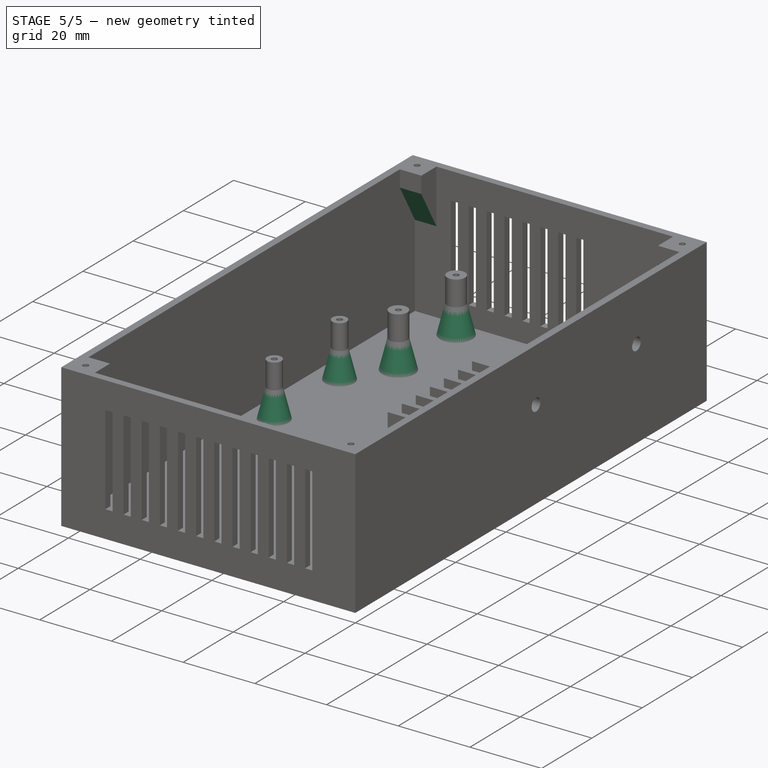
[diagram: stage 5 of 5 — iso view after this stage's code; geometry added in this stage tinted green]
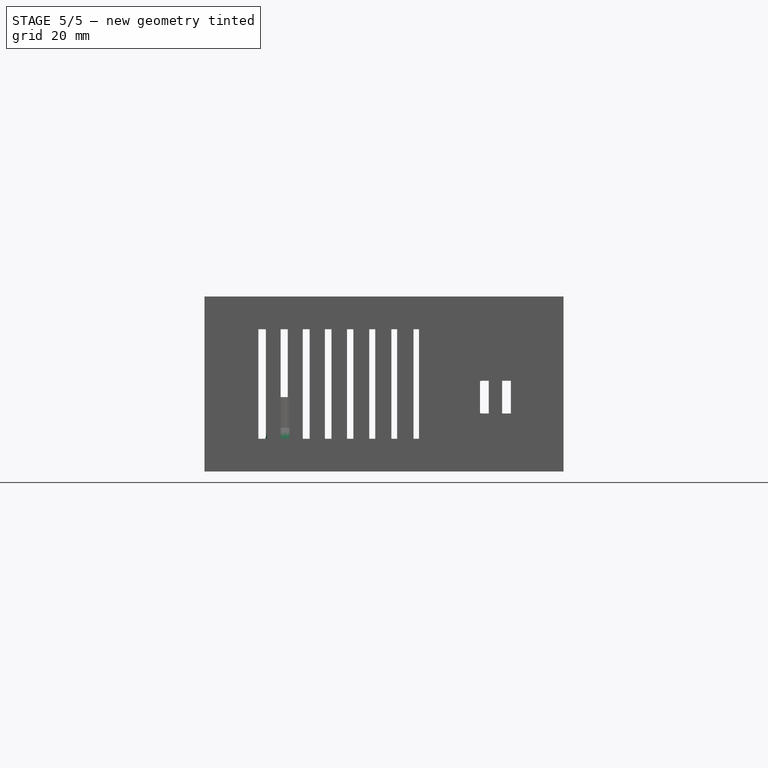
[diagram: stage 5 of 5 — front view after this stage's code; geometry added in this stage tinted green]
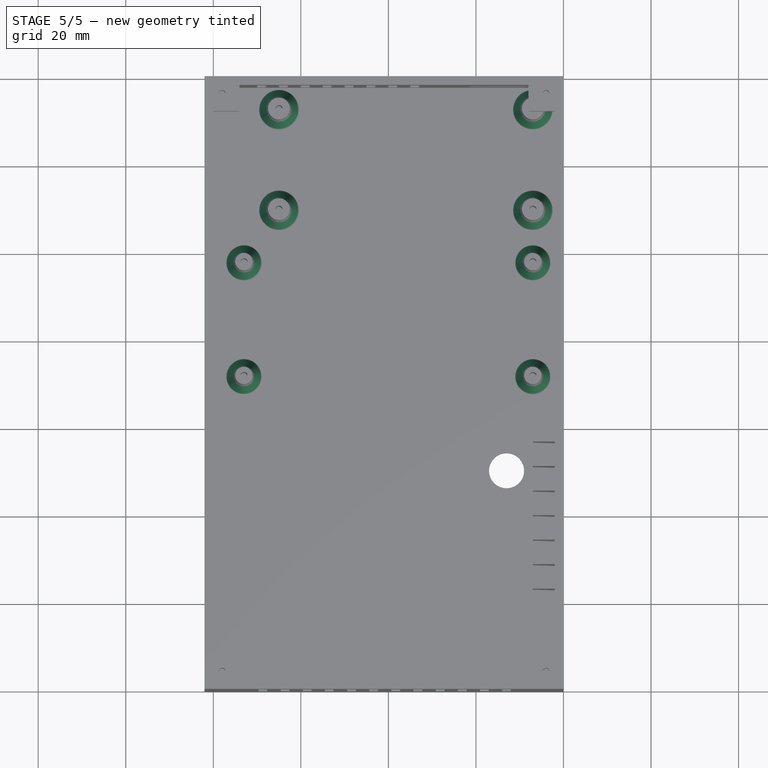
[diagram: stage 5 of 5 — top view after this stage's code; geometry added in this stage tinted green]
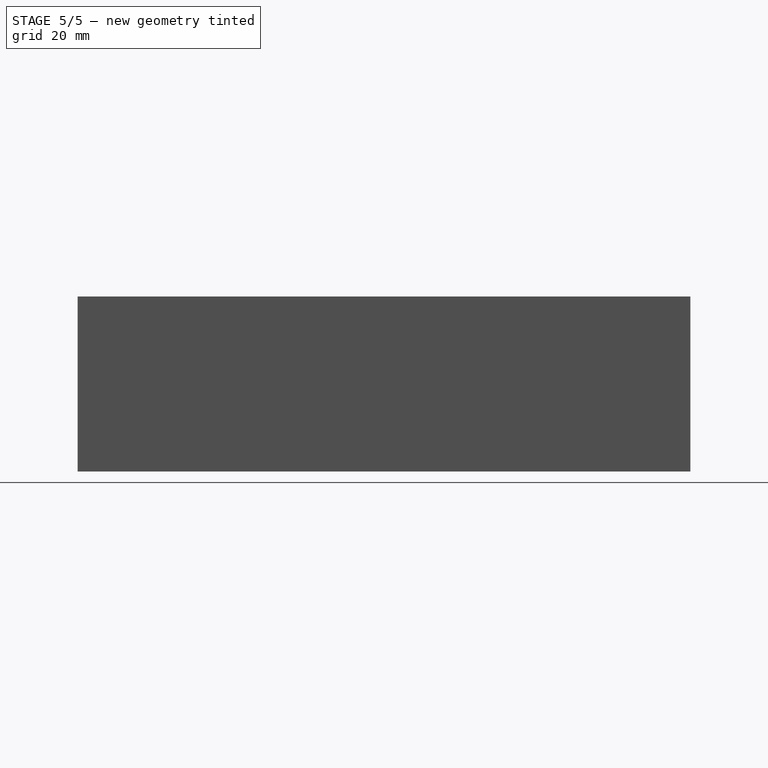
[diagram: stage 5 of 5 — right view after this stage's code; geometry added in this stage tinted green]
FEATURE [PartDesign::Chamfer] Chamfer
  Angle = 45
  Base = -> Pocket005 [Edge410,Edge409,Edge411,Edge412,Edge405,Edge406,Edge407,Edge408]
  BaseFeature = -> Pocket005
  ChamferType = 1
  FlipDirection = false
  Placement = pos=(0,0,0) rot=(0.57735,-0.57735,-0.57735;2.0944rad)
  Size = 2
  Size2 = 8
  SupportTransform = false
FEATURE [PartDesign::Chamfer] Chamfer001
  Angle = 60
  Base = -> Chamfer [Edge197,Edge211,Edge225,Edge238,Edge227,Edge213,Edge199]
  BaseFeature = -> Chamfer
  ChamferType = 2
  FlipDirection = false
  Placement = pos=(0,0,0) rot=(0.57735,-0.57735,-0.57735;2.0944rad)
  Size = 4.99
  Size2 = 1
  SupportTransform = false
FEATURE [PartDesign::Chamfer] Chamfer002
  Angle = 60
  Base = -> Chamfer001 [Edge160,Edge162,Edge366,Edge262]
  BaseFeature = -> Chamfer001
  ChamferType = 2
  FlipDirection = false
  Placement = pos=(0,0,0) rot=(0.57735,-0.57735,-0.57735;2.0944rad)
  Size = 5.99
  Size2 = 1
  SupportTransform = false
FEATURE [PartDesign::Body] Body
  Group = -> [Sketch,Pad,Sketch001,Pad001,Sketch002,Pad002,Sketch003,Pad003,Sketch004,Pad004,Sketch005,Pocket,Sketch006,Pad005,Sketch007,Pad006,Sketch010,Pocket001,Sketch011,Pad007,Sketch012,Pocket002,Sketch013,Pocket003,Sketch014,Pocket004,Sketch015,Pocket005,Chamfer,Chamfer001,Chamfer002]
  Origin = -> Origin001
  Tip = -> Chamfer002
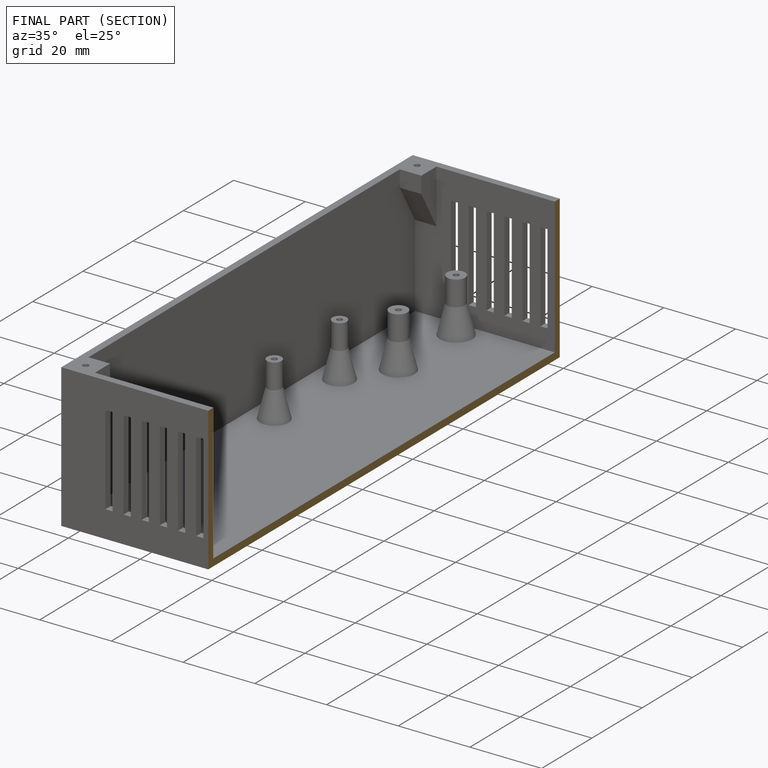
[diagram: finished part — half-section view (interior)]
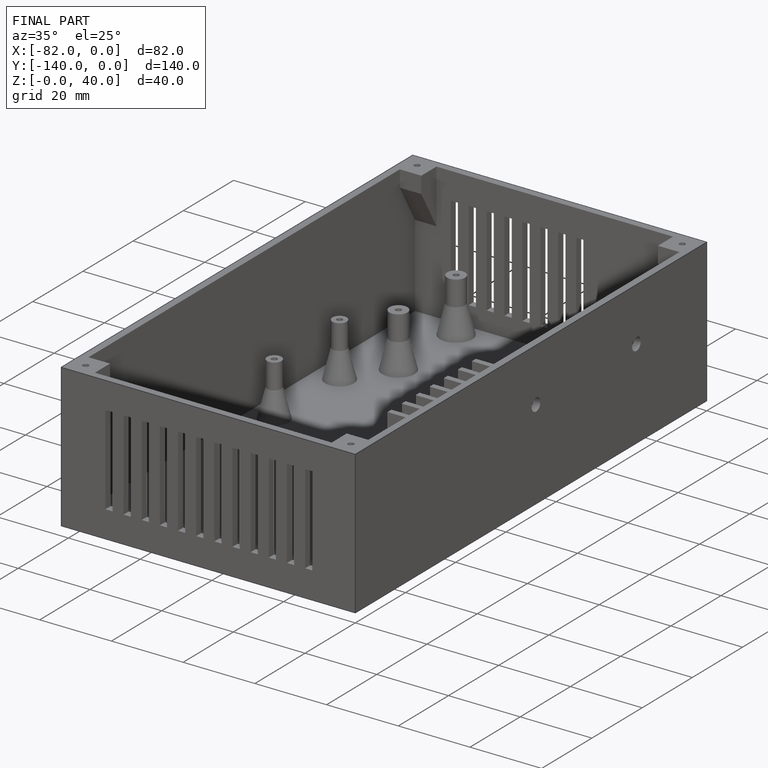
[diagram: finished part — iso view with bounding-box wireframe]
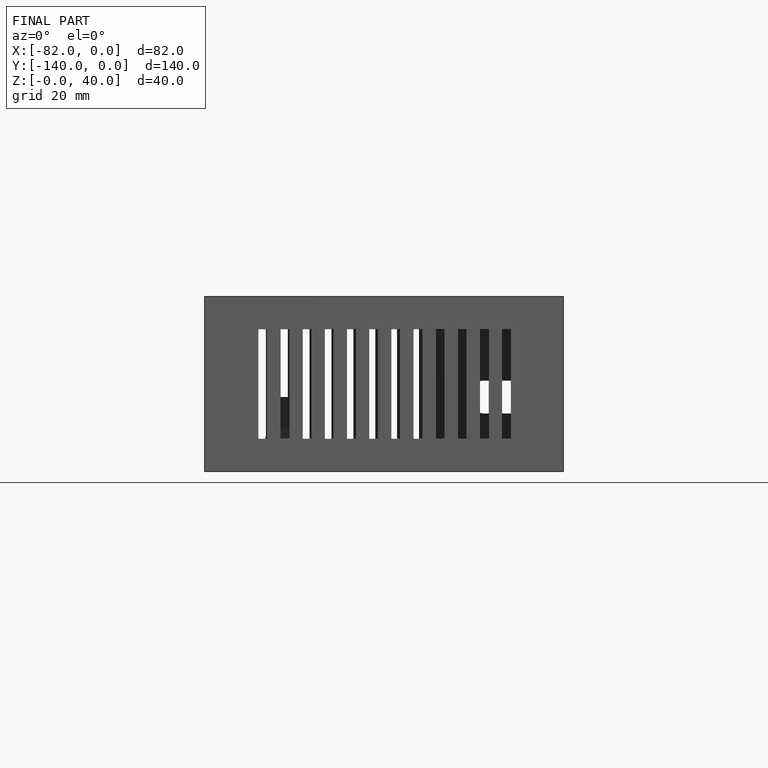
[diagram: finished part — front view with bounding-box wireframe]
